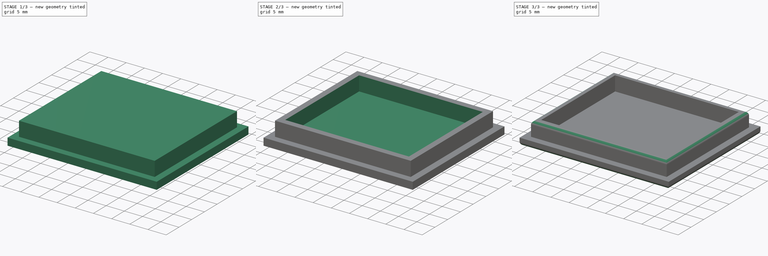
[diagram: build sequence overview — one tinted view per stage of 3, left to right]
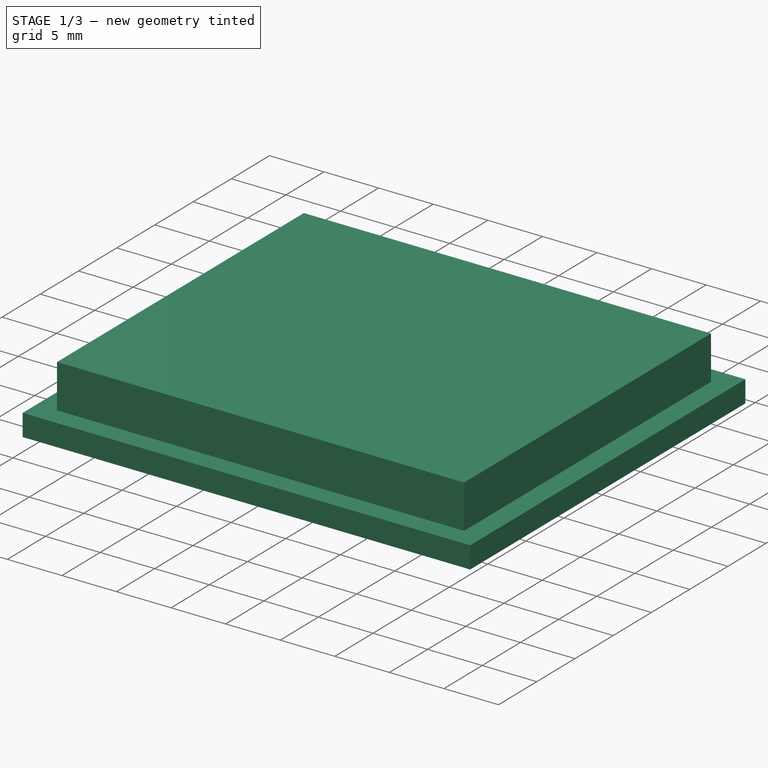
[diagram: stage 1 of 3 — iso view after this stage's code; geometry added in this stage tinted green]
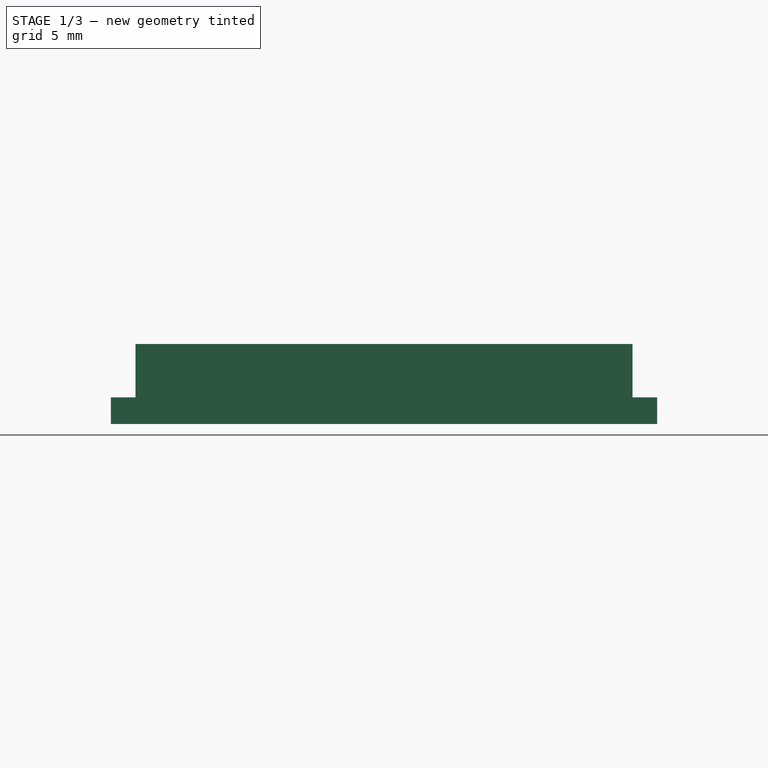
[diagram: stage 1 of 3 — front view after this stage's code; geometry added in this stage tinted green]
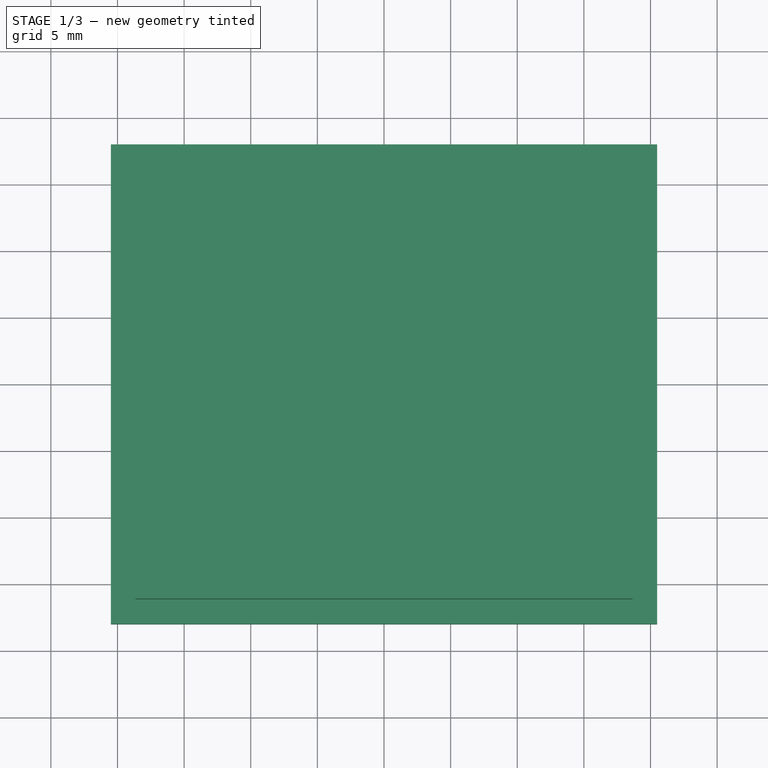
[diagram: stage 1 of 3 — top view after this stage's code; geometry added in this stage tinted green]
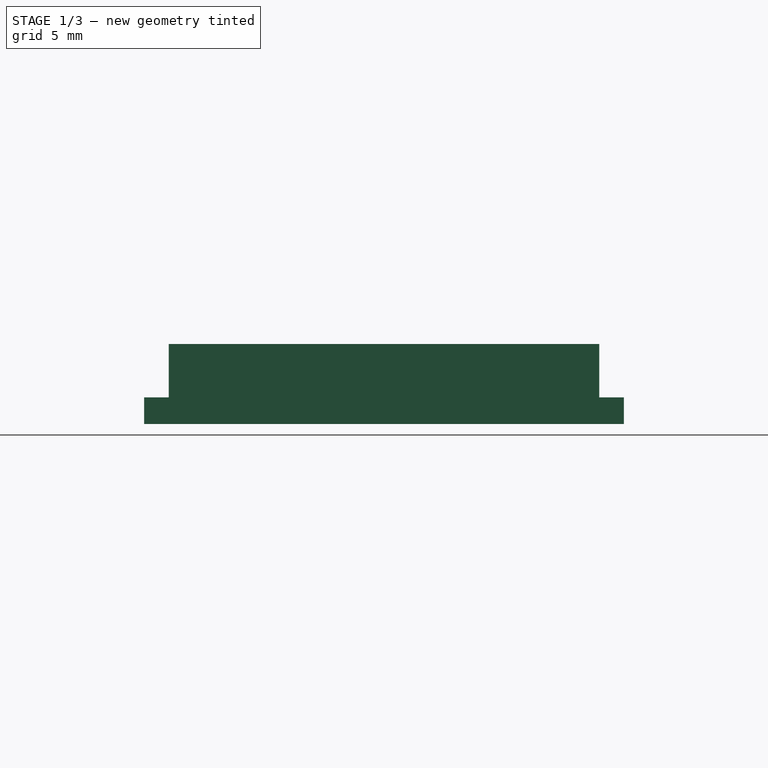
[diagram: stage 1 of 3 — right view after this stage's code; geometry added in this stage tinted green]
FCSTD DOCUMENT  (FreeCAD 0.18R16146 (Git))
Label: SensorCaseCap_3
License: All rights reserved
LicenseURL: http://en.wikipedia.org/wiki/All_rights_reserved
objects: Sketcher::SketchObject×3, PartDesign::Pad×2, PartDesign::Fillet×2, PartDesign::Pocket×1, PartDesign::Body×1
note: 12 computed .brp shape members not serialized (recipe doc carries the construction recipe); baked Part::Feature solids carry a one-line shape summary decoded from their .brp

FEATURE [Sketcher::SketchObject] Sketch
  MapMode = 5
  Support = -> [XY_Plane]
  sketch-geometry (4):
    g0: LineSegment StartX=-20.5 StartY=18 StartZ=0 EndX=20.5 EndY=18 EndZ=0
    g1: LineSegment StartX=20.5 StartY=18 StartZ=0 EndX=20.5 EndY=-18 EndZ=0
    g2: LineSegment StartX=20.5 StartY=-18 StartZ=0 EndX=-20.5 EndY=-18 EndZ=0
    g3: LineSegment StartX=-20.5 StartY=-18 StartZ=0 EndX=-20.5 EndY=18 EndZ=0
  constraints (12):
    c: Coincident(g0,g1)
    c: Coincident(g1,g2)
    c: Coincident(g2,g3)
    c: Coincident(g3,g0)
    c: Horizontal(g0)
    c: Horizontal(g2)
    c: Vertical(g1)
    c: Vertical(g3)
    c: Distance(g0) = 41
    c: Distance(g1) = 36
    c: Distance(g-1,g3) = 20.5
    c: Distance(g-1,g2) = 18
FEATURE [PartDesign::Pad] Pad
  Length = 2
  Length2 = 100
  Profile = -> Sketch
  Type = 0
FEATURE [Sketcher::SketchObject] Sketch001
  MapMode = 5
  Placement = pos=(0,0,2) rot=(0,0,1;0rad)
  Support = -> [Pad]
  sketch-geometry (4):
    g0: LineSegment StartX=-18.65 StartY=16.15 StartZ=0 EndX=18.65 EndY=16.15 EndZ=0
    g1: LineSegment StartX=18.65 StartY=16.15 StartZ=0 EndX=18.65 EndY=-16.15 EndZ=0
    g2: LineSegment StartX=18.65 StartY=-16.15 StartZ=0 EndX=-18.65 EndY=-16.15 EndZ=0
    g3: LineSegment StartX=-18.65 StartY=-16.15 StartZ=0 EndX=-18.65 EndY=16.15 EndZ=0
  constraints (12):
    c: Coincident(g0,g1)
    c: Coincident(g1,g2)
    c: Coincident(g2,g3)
    c: Coincident(g3,g0)
    c: Horizontal(g0)
    c: Horizontal(g2)
    c: Vertical(g1)
    c: Vertical(g3)
    c: Distance(g0) = 37.3
    c: Distance(g1) = 32.3
    c: Distance(g-1,g1) = 18.65
    c: Distance(g-1,g2) = 16.15
FEATURE [PartDesign::Pad] Pad001
  BaseFeature = -> Pad
  Length = 4
  Length2 = 100
  Profile = -> Sketch001
  Type = 0
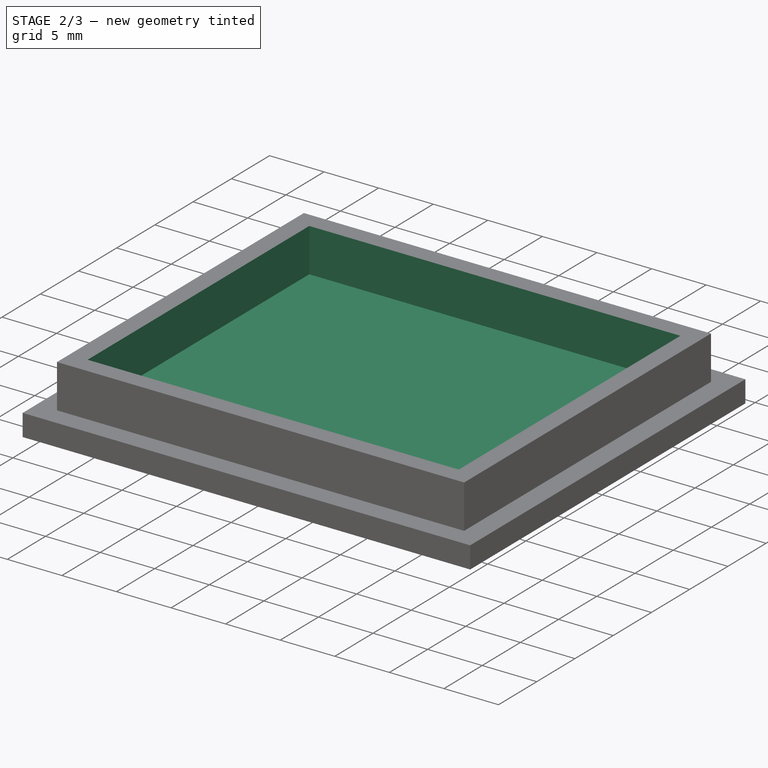
[diagram: stage 2 of 3 — iso view after this stage's code; geometry added in this stage tinted green]
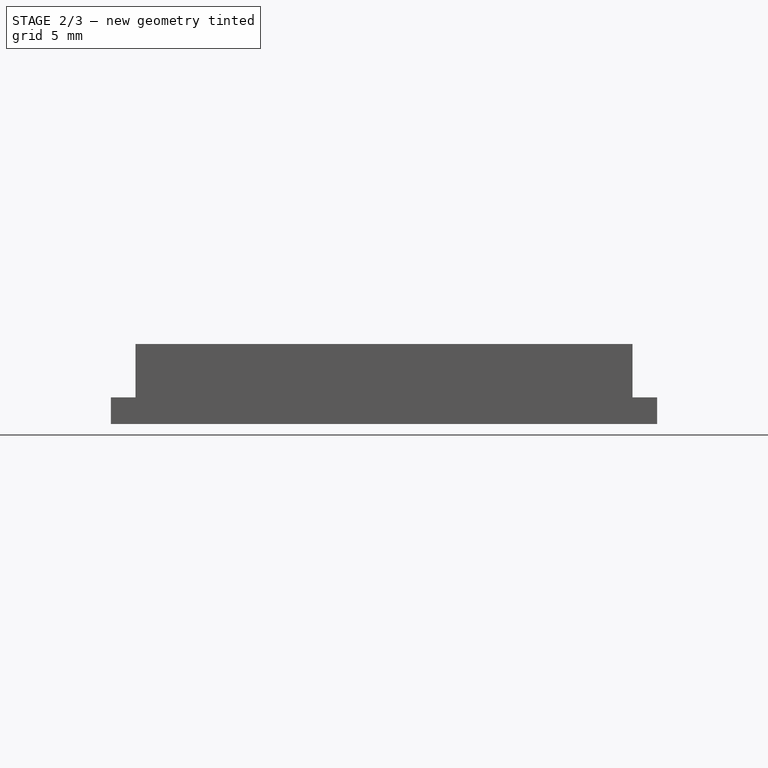
[diagram: stage 2 of 3 — front view after this stage's code; geometry added in this stage tinted green]
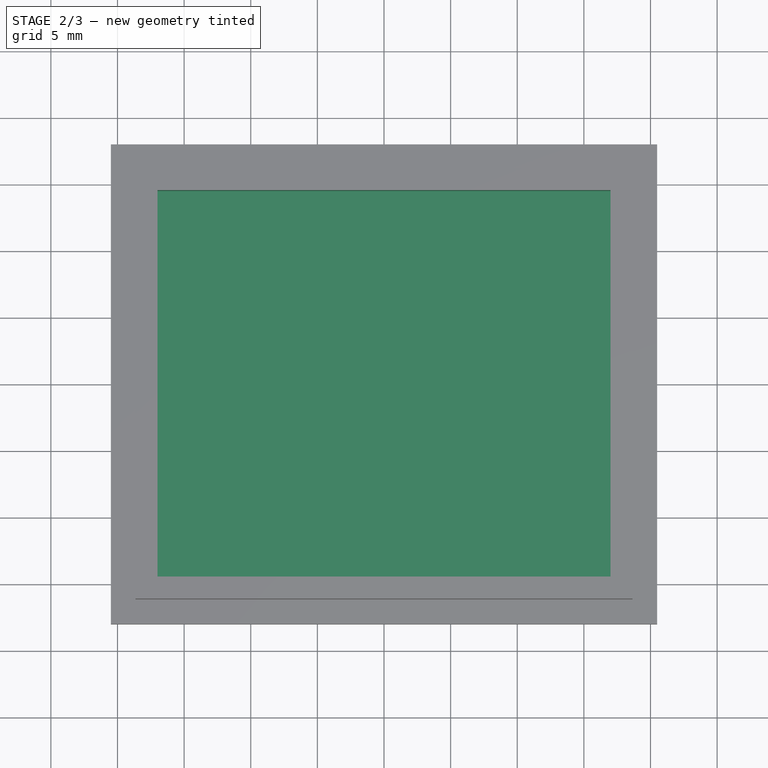
[diagram: stage 2 of 3 — top view after this stage's code; geometry added in this stage tinted green]
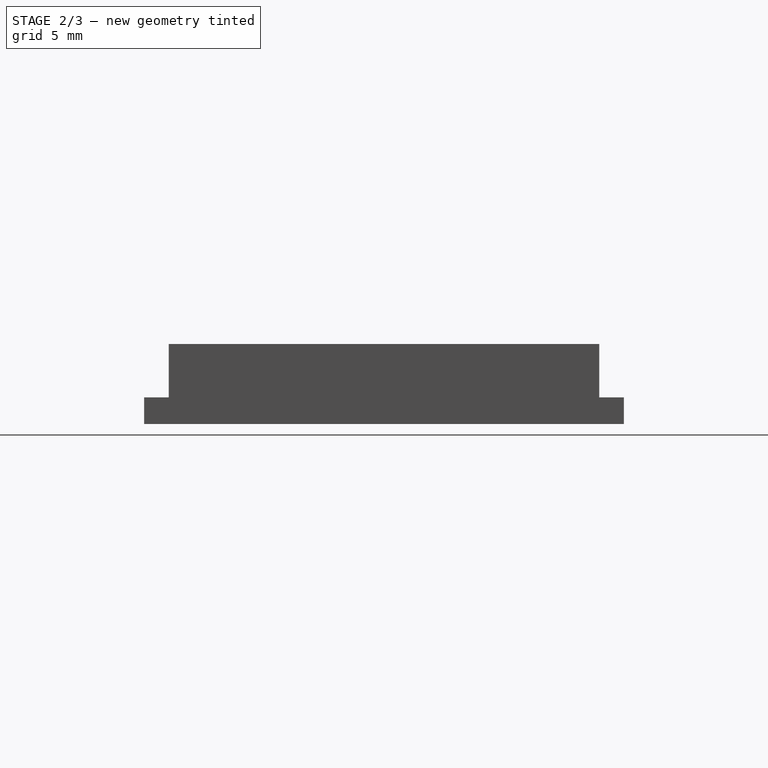
[diagram: stage 2 of 3 — right view after this stage's code; geometry added in this stage tinted green]
FEATURE [Sketcher::SketchObject] Sketch002
  MapMode = 5
  Placement = pos=(0,0,6) rot=(0,0,1;0rad)
  Support = -> [Pad001]
  sketch-geometry (4):
    g0: LineSegment StartX=-17 StartY=14.5 StartZ=0 EndX=17 EndY=14.5 EndZ=0
    g1: LineSegment StartX=17 StartY=14.5 StartZ=0 EndX=17 EndY=-14.5 EndZ=0
    g2: LineSegment StartX=17 StartY=-14.5 StartZ=0 EndX=-17 EndY=-14.5 EndZ=0
    g3: LineSegment StartX=-17 StartY=-14.5 StartZ=0 EndX=-17 EndY=14.5 EndZ=0
  constraints (12):
    c: Coincident(g0,g1)
    c: Coincident(g1,g2)
    c: Coincident(g2,g3)
    c: Coincident(g3,g0)
    c: Horizontal(g0)
    c: Horizontal(g2)
    c: Vertical(g1)
    c: Vertical(g3)
    c: Distance(g0) = 34
    c: Distance(g1) = 29
    c: Distance(g-1,g0) = 14.5
    c: Distance(g-1,g3) = 17
FEATURE [PartDesign::Pocket] Pocket
  BaseFeature = -> Pad001
  Length = 4
  Length2 = 100
  Profile = -> Sketch002
  Type = 0
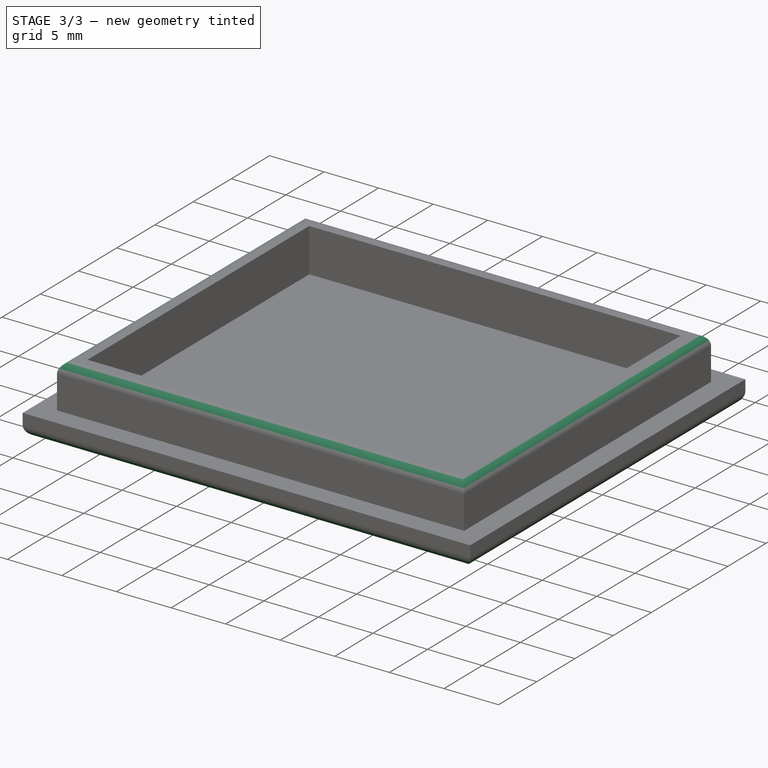
[diagram: stage 3 of 3 — iso view after this stage's code; geometry added in this stage tinted green]
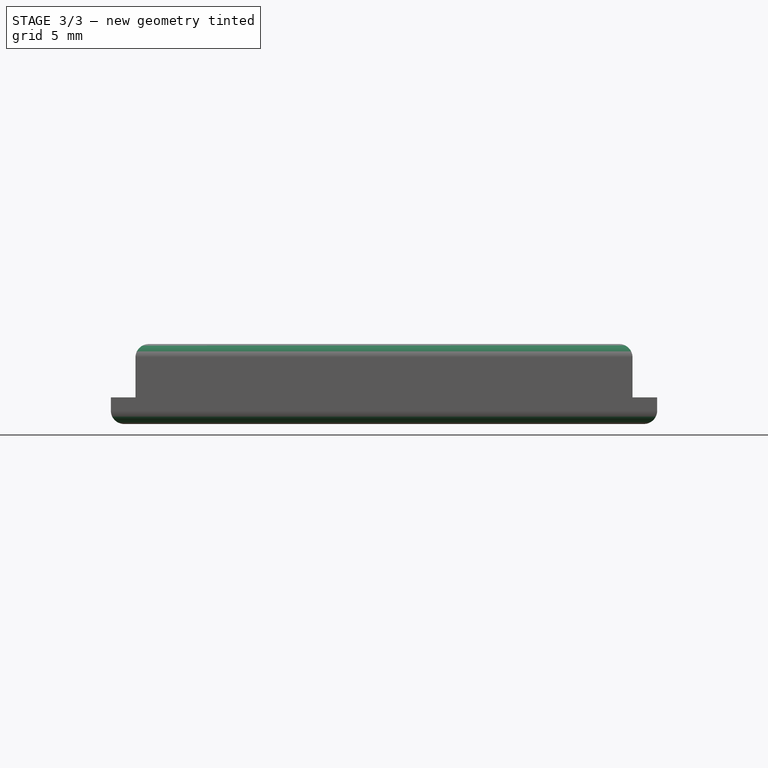
[diagram: stage 3 of 3 — front view after this stage's code; geometry added in this stage tinted green]
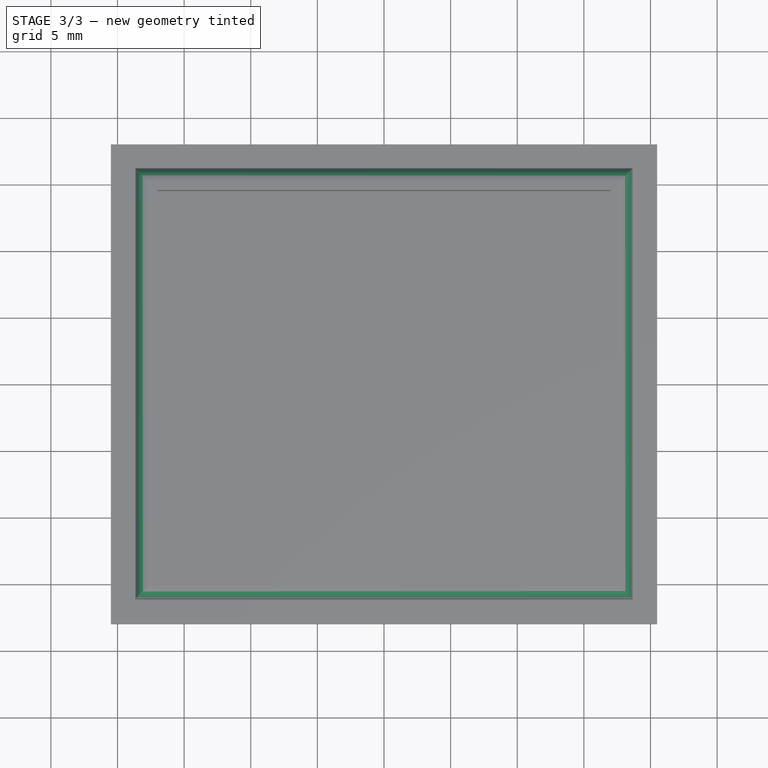
[diagram: stage 3 of 3 — top view after this stage's code; geometry added in this stage tinted green]
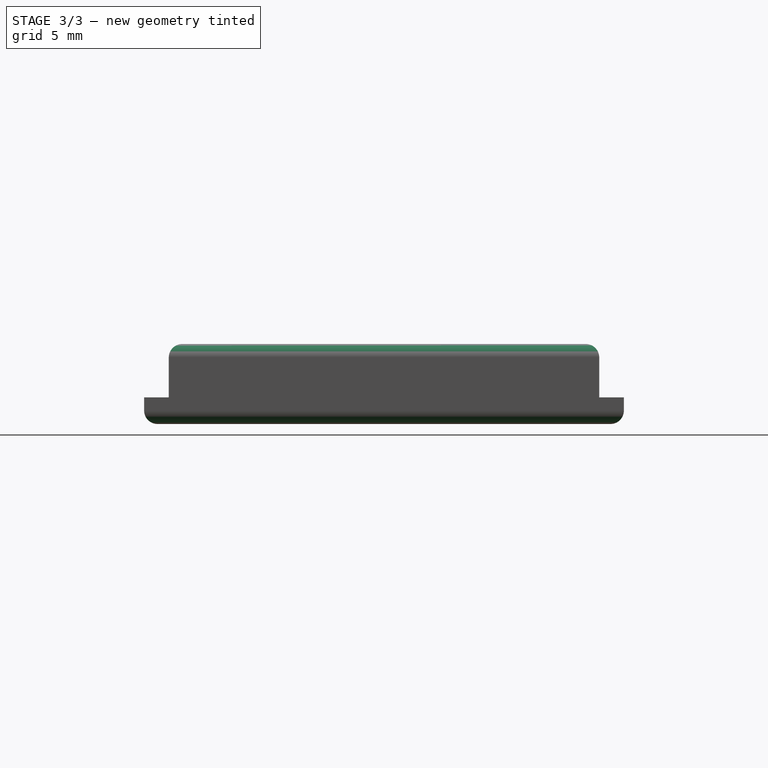
[diagram: stage 3 of 3 — right view after this stage's code; geometry added in this stage tinted green]
FEATURE [PartDesign::Fillet] Fillet
  Base = -> Pocket [Edge19,Edge21,Edge23,Edge24]
  BaseFeature = -> Pocket
  Radius = 1
FEATURE [PartDesign::Fillet] Fillet001
  Base = -> Fillet [Edge31,Edge35,Edge36,Edge33]
  BaseFeature = -> Fillet
  Radius = 1
FEATURE [PartDesign::Body] Body
  Group = -> [Sketch,Pad,Sketch001,Pad001,Sketch002,Pocket,Fillet,Fillet001]
  Origin = -> Origin
  Tip = -> Fillet001
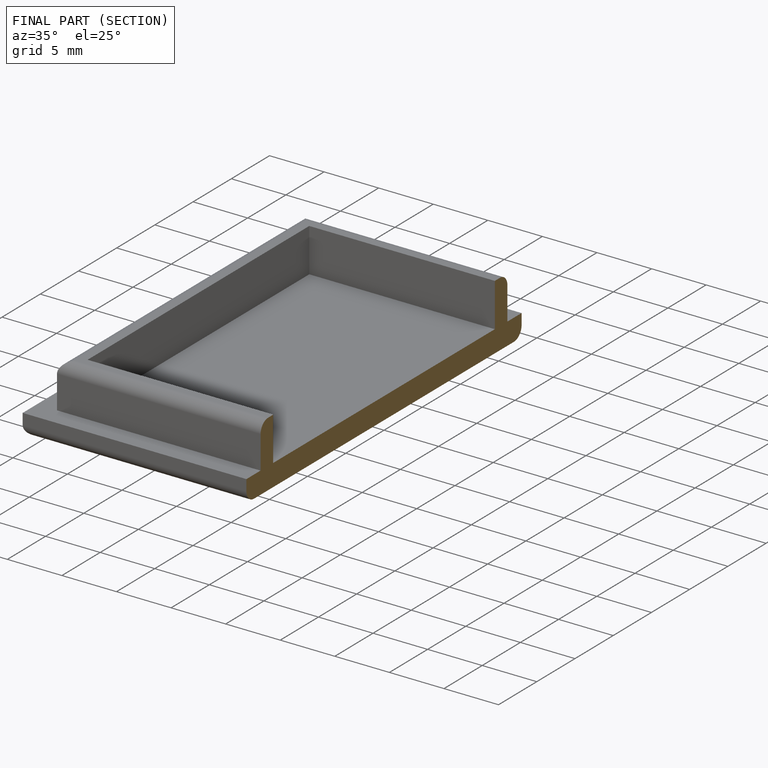
[diagram: finished part — half-section view (interior)]
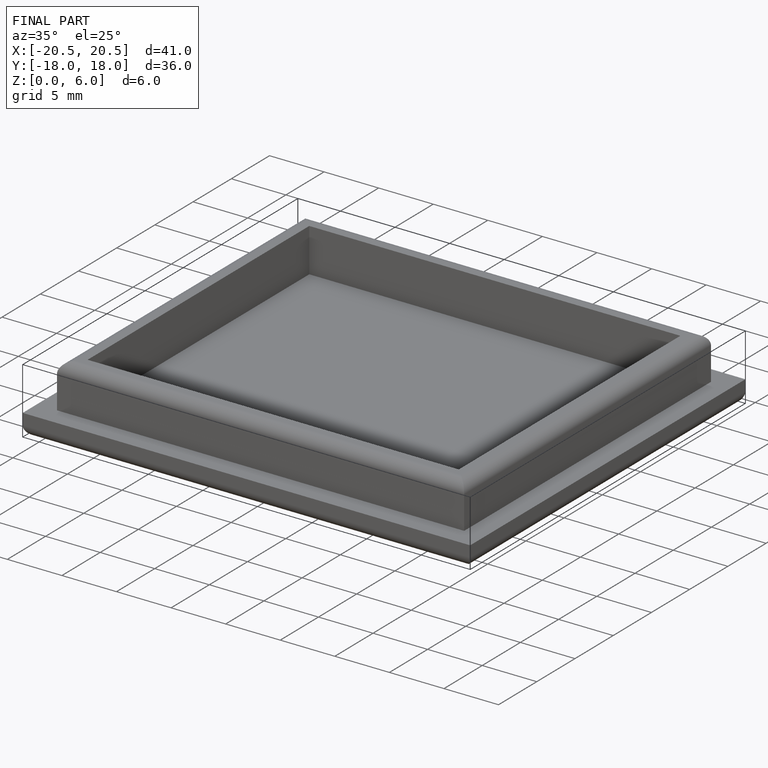
[diagram: finished part — iso view with bounding-box wireframe]
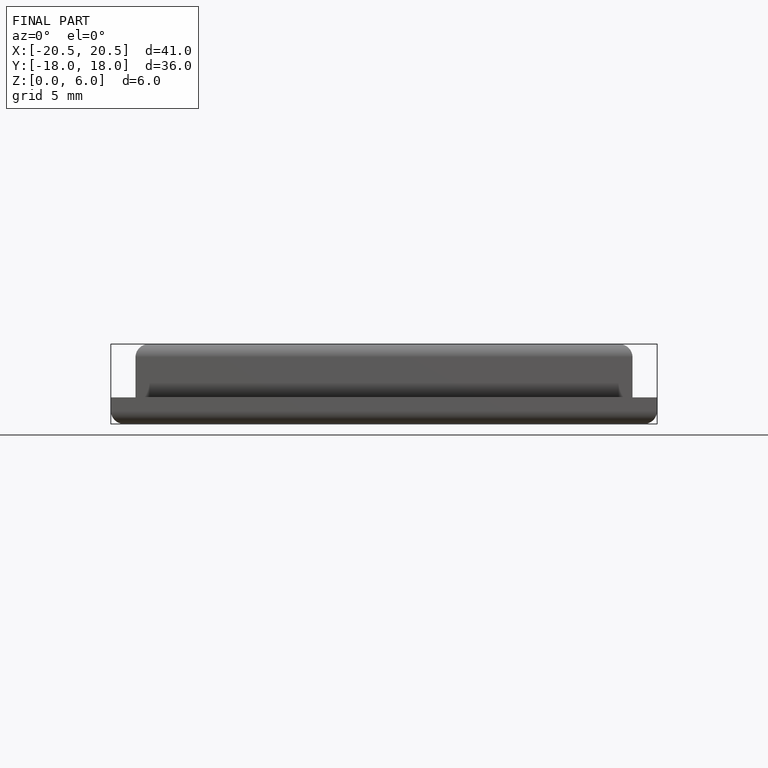
[diagram: finished part — front view with bounding-box wireframe]
